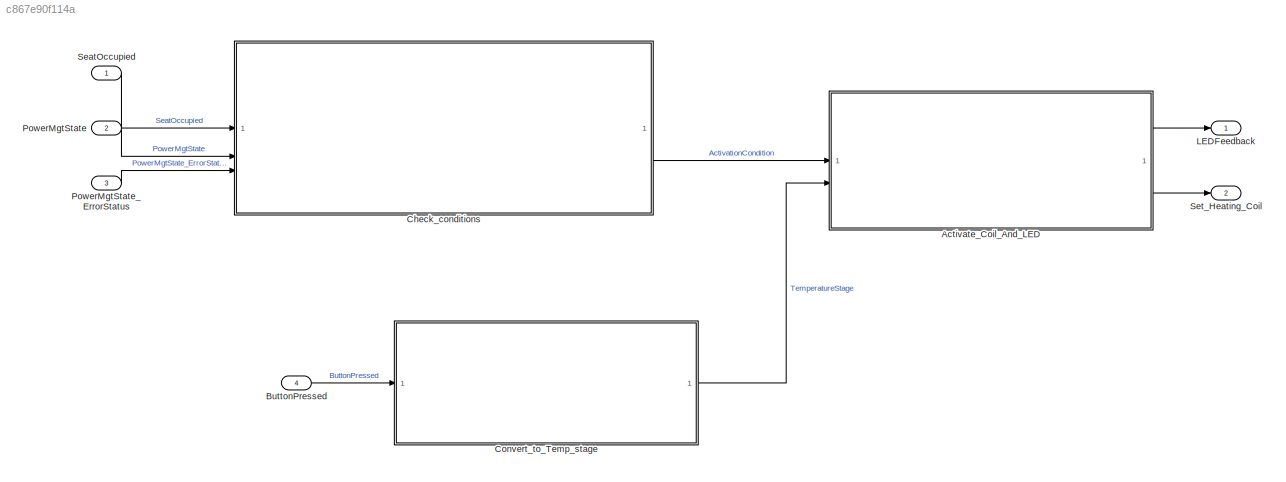
MODEL slx_c867e90f114a
KIND model
CONFIG AbsTol = auto
CONFIG EnableMultiTasking = off
CONFIG FixedStep = 0.01
CONFIG MaxStep = auto
CONFIG MinStep = auto
CONFIG RelTol = 1e-3
CONFIG SampleTimeConstraint = Unconstrained
CONFIG SolverName = FixedStepDiscrete
CONFIG StartTime = 0.0
CONFIG StopTime = 10.0
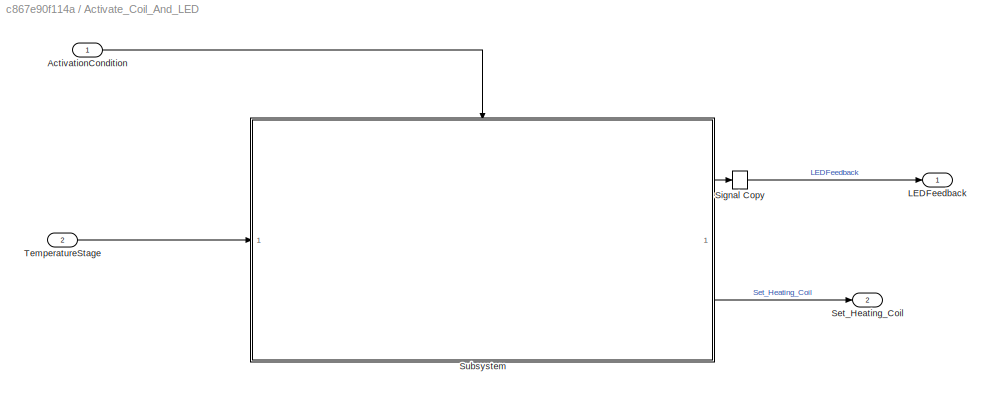
BLOCK [SubSystem] Activate_Coil_And_LED
BLOCK [Inport] Activate_Coil_And_LED/ActivationCondition
BLOCK [Outport] Activate_Coil_And_LED/LEDFeedback
  EnsureOutportIsVirtual = on
BLOCK [Outport] Activate_Coil_And_LED/Set_Heating_Coil
  Port = 2
BLOCK [SignalConversion] Activate_Coil_And_LED/Signal Copy
  OverrideOpt = off
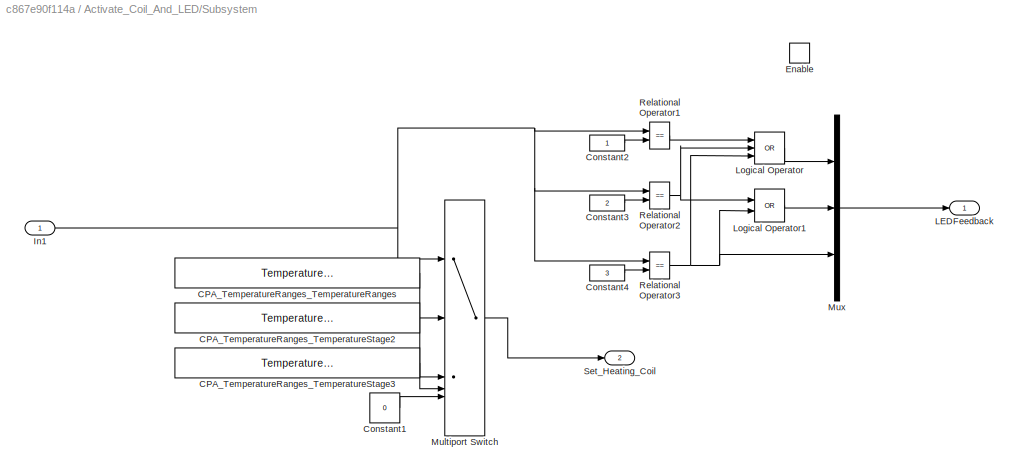
BLOCK [SubSystem] Activate_Coil_And_LED/Subsystem
BLOCK [Constant] Activate_Coil_And_LED/Subsystem/CPA_TemperatureRanges_TemperatureRanges
  Value = TemperatureStage1
BLOCK [Constant] Activate_Coil_And_LED/Subsystem/CPA_TemperatureRanges_TemperatureStage2
  Value = TemperatureStage2
BLOCK [Constant] Activate_Coil_And_LED/Subsystem/CPA_TemperatureRanges_TemperatureStage3
  Value = TemperatureStage3
BLOCK [Constant] Activate_Coil_And_LED/Subsystem/Constant1
  Value = 0
BLOCK [Constant] Activate_Coil_And_LED/Subsystem/Constant2
  OutDataTypeStr = Inherit: Inherit via back propagation
BLOCK [Constant] Activate_Coil_And_LED/Subsystem/Constant3
  OutDataTypeStr = Inherit: Inherit via back propagation
  Value = 2
BLOCK [Constant] Activate_Coil_And_LED/Subsystem/Constant4
  OutDataTypeStr = Inherit: Inherit via back propagation
  Value = 3
BLOCK [EnablePort] Activate_Coil_And_LED/Subsystem/Enable
BLOCK [Inport] Activate_Coil_And_LED/Subsystem/In1
BLOCK [Outport] Activate_Coil_And_LED/Subsystem/LEDFeedback
BLOCK [Logic] Activate_Coil_And_LED/Subsystem/Logical Operator
  AllPortsSameDT = off
  Inputs = 3
  Operator = OR
  OutDataTypeStr = boolean
BLOCK [Logic] Activate_Coil_And_LED/Subsystem/Logical Operator1
  AllPortsSameDT = off
  Operator = OR
  OutDataTypeStr = boolean
BLOCK [MultiPortSwitch] Activate_Coil_And_LED/Subsystem/Multiport Switch
  DataPortForDefault = Additional data port
  DataPortIndices = {0,1,2,3}
  DiagnosticForDefault = None
  InputSameDT = off
  OutDataTypeStr = uint8
  SaturateOnIntegerOverflow = off
BLOCK [Mux] Activate_Coil_And_LED/Subsystem/Mux
  DisplayOption = bar
  Inputs = 3
BLOCK [RelationalOperator] Activate_Coil_And_LED/Subsystem/Relational Operator1
  InputSameDT = off
  Operator = ==
  OutDataTypeStr = boolean
  RndMeth = Simplest
BLOCK [RelationalOperator] Activate_Coil_And_LED/Subsystem/Relational Operator2
  InputSameDT = off
  Operator = ==
  OutDataTypeStr = boolean
  RndMeth = Simplest
BLOCK [RelationalOperator] Activate_Coil_And_LED/Subsystem/Relational Operator3
  InputSameDT = off
  Operator = ==
  OutDataTypeStr = boolean
  RndMeth = Simplest
BLOCK [Outport] Activate_Coil_And_LED/Subsystem/Set_Heating_Coil
  Port = 2
BLOCK [Inport] Activate_Coil_And_LED/TemperatureStage
  Port = 2
BLOCK [Inport] ButtonPressed
  Port = 4
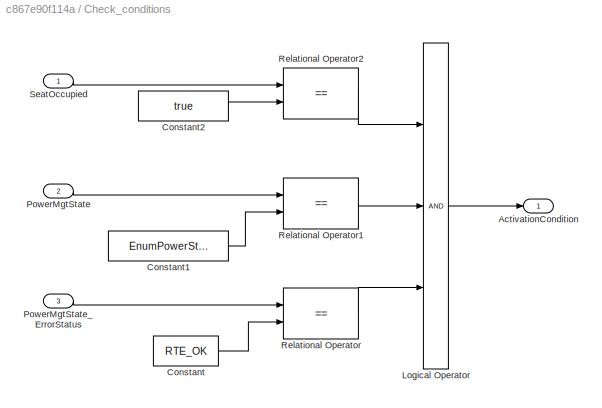
BLOCK [SubSystem] Check_conditions
BLOCK [Outport] Check_conditions/ActivationCondition
  InitialOutput = 0
  OutDataTypeStr = boolean
  PortDimensions = 1
  SamplingMode = Sample based
  SignalType = real
BLOCK [Constant] Check_conditions/Constant
  Value = RTE_OK
BLOCK [Constant] Check_conditions/Constant1
  Value = EnumPowerState.OK
BLOCK [Constant] Check_conditions/Constant2
  Value = true
BLOCK [Logic] Check_conditions/Logical Operator
  AllPortsSameDT = off
  Inputs = 3
  OutDataTypeStr = boolean
BLOCK [Inport] Check_conditions/PowerMgtState
  Port = 2
BLOCK [Inport] Check_conditions/PowerMgtState_ErrorStatus
  Port = 3
BLOCK [RelationalOperator] Check_conditions/Relational Operator
  InputSameDT = off
  Operator = ==
  OutDataTypeStr = boolean
  RndMeth = Simplest
BLOCK [RelationalOperator] Check_conditions/Relational Operator1
  InputSameDT = off
  Operator = ==
  OutDataTypeStr = boolean
  RndMeth = Simplest
BLOCK [RelationalOperator] Check_conditions/Relational Operator2
  InputSameDT = off
  Operator = ==
  OutDataTypeStr = boolean
  RndMeth = Simplest
BLOCK [Inport] Check_conditions/SeatOccupied
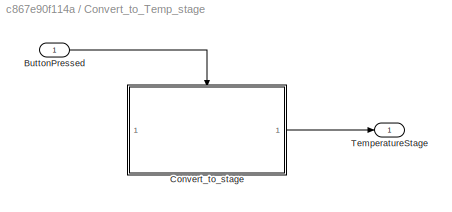
BLOCK [SubSystem] Convert_to_Temp_stage
BLOCK [Inport] Convert_to_Temp_stage/ButtonPressed
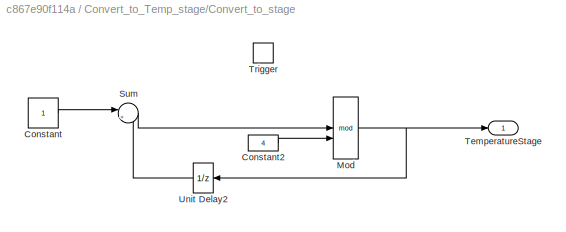
BLOCK [SubSystem] Convert_to_Temp_stage/Convert_to_stage
BLOCK [Constant] Convert_to_Temp_stage/Convert_to_stage/Constant
  OutDataTypeStr = Inherit: Inherit via back propagation
BLOCK [Constant] Convert_to_Temp_stage/Convert_to_stage/Constant2
  NameLocation = top
  OutDataTypeStr = Inherit: Inherit via back propagation
  Value = 4
BLOCK [Math] Convert_to_Temp_stage/Convert_to_stage/Mod
  Operator = mod
BLOCK [Sum] Convert_to_Temp_stage/Convert_to_stage/Sum
  Inputs = |++
BLOCK [Outport] Convert_to_Temp_stage/Convert_to_stage/TemperatureStage
  InitialOutput = 0
BLOCK [TriggerPort] Convert_to_Temp_stage/Convert_to_stage/Trigger
  PortDimensions = 1
  StatesWhenEnabling = held
  VariantControl = Variant
BLOCK [UnitDelay] Convert_to_Temp_stage/Convert_to_stage/Unit Delay2
  AttributesFormatString = Init = %<InitialCondition>
  HasFrameUpgradeWarning = on
  SampleTime = -1
BLOCK [Outport] Convert_to_Temp_stage/TemperatureStage
  InitialOutput = 0
  OutDataTypeStr = uint8
  PortDimensions = 1
  SamplingMode = Sample based
  SignalType = real
BLOCK [Outport] LEDFeedback
  OutDataTypeStr = boolean
  SamplingMode = Sample based
  SignalType = real
BLOCK [Inport] PowerMgtState
  OutDataTypeStr = Enum: EnumPowerState
  Port = 2
  PortDimensions = 1
  SamplingMode = Sample based
  SignalType = real
BLOCK [Inport] PowerMgtState_ErrorStatus
  OutDataTypeStr = uint8
  Port = 3
  PortDimensions = 1
  SamplingMode = Sample based
  SignalType = real
BLOCK [Inport] SeatOccupied
  OutDataTypeStr = boolean
  PortDimensions = 1
  SamplingMode = Sample based
  SignalType = real
BLOCK [Outport] Set_Heating_Coil
  Port = 2
LINE Activate_Coil_And_LED/ActivationCondition:1 -> Activate_Coil_And_LED/Subsystem:enable
LINE Activate_Coil_And_LED/Signal Copy:1 -> Activate_Coil_And_LED/LEDFeedback:1
LINE Activate_Coil_And_LED/Subsystem/CPA_TemperatureRanges_TemperatureRanges:1 -> Activate_Coil_And_LED/Subsystem/Multiport Switch:2
LINE Activate_Coil_And_LED/Subsystem/CPA_TemperatureRanges_TemperatureStage2:1 -> Activate_Coil_And_LED/Subsystem/Multiport Switch:3
LINE Activate_Coil_And_LED/Subsystem/CPA_TemperatureRanges_TemperatureStage3:1 -> Activate_Coil_And_LED/Subsystem/Multiport Switch:4
LINE Activate_Coil_And_LED/Subsystem/Constant1:1 -> Activate_Coil_And_LED/Subsystem/Multiport Switch:5
LINE Activate_Coil_And_LED/Subsystem/Constant2:1 -> Activate_Coil_And_LED/Subsystem/Relational Operator1:2
LINE Activate_Coil_And_LED/Subsystem/Constant3:1 -> Activate_Coil_And_LED/Subsystem/Relational Operator2:2
LINE Activate_Coil_And_LED/Subsystem/Constant4:1 -> Activate_Coil_And_LED/Subsystem/Relational Operator3:2
NET Activate_Coil_And_LED/Subsystem/In1:1 -> Activate_Coil_And_LED/Subsystem/Multiport Switch:1, Activate_Coil_And_LED/Subsystem/Relational Operator1:1, Activate_Coil_And_LED/Subsystem/Relational Operator2:1, Activate_Coil_And_LED/Subsystem/Relational Operator3:1
LINE Activate_Coil_And_LED/Subsystem/Logical Operator1:1 -> Activate_Coil_And_LED/Subsystem/Mux:2
LINE Activate_Coil_And_LED/Subsystem/Logical Operator:1 -> Activate_Coil_And_LED/Subsystem/Mux:1
LINE Activate_Coil_And_LED/Subsystem/Multiport Switch:1 -> Activate_Coil_And_LED/Subsystem/Set_Heating_Coil:1
LINE Activate_Coil_And_LED/Subsystem/Mux:1 -> Activate_Coil_And_LED/Subsystem/LEDFeedback:1
LINE Activate_Coil_And_LED/Subsystem/Relational Operator1:1 -> Activate_Coil_And_LED/Subsystem/Logical Operator:1
NET Activate_Coil_And_LED/Subsystem/Relational Operator2:1 -> Activate_Coil_And_LED/Subsystem/Logical Operator1:1, Activate_Coil_And_LED/Subsystem/Logical Operator:2
NET Activate_Coil_And_LED/Subsystem/Relational Operator3:1 -> Activate_Coil_And_LED/Subsystem/Logical Operator1:2, Activate_Coil_And_LED/Subsystem/Logical Operator:3, Activate_Coil_And_LED/Subsystem/Mux:3
LINE Activate_Coil_And_LED/Subsystem:1 -> Activate_Coil_And_LED/Signal Copy:1
LINE Activate_Coil_And_LED/Subsystem:2 -> Activate_Coil_And_LED/Set_Heating_Coil:1
LINE Activate_Coil_And_LED/TemperatureStage:1 -> Activate_Coil_And_LED/Subsystem:1
LINE Activate_Coil_And_LED:1 -> LEDFeedback:1
LINE Activate_Coil_And_LED:2 -> Set_Heating_Coil:1
LINE ButtonPressed:1 -> Convert_to_Temp_stage:1
LINE Check_conditions/Constant1:1 -> Check_conditions/Relational Operator1:2
LINE Check_conditions/Constant2:1 -> Check_conditions/Relational Operator2:2
LINE Check_conditions/Constant:1 -> Check_conditions/Relational Operator:2
LINE Check_conditions/Logical Operator:1 -> Check_conditions/ActivationCondition:1
LINE Check_conditions/PowerMgtState:1 -> Check_conditions/Relational Operator1:1
LINE Check_conditions/PowerMgtState_ErrorStatus:1 -> Check_conditions/Relational Operator:1
LINE Check_conditions/Relational Operator1:1 -> Check_conditions/Logical Operator:2
LINE Check_conditions/Relational Operator2:1 -> Check_conditions/Logical Operator:1
LINE Check_conditions/Relational Operator:1 -> Check_conditions/Logical Operator:3
LINE Check_conditions/SeatOccupied:1 -> Check_conditions/Relational Operator2:1
LINE Check_conditions:1 -> Activate_Coil_And_LED:1
LINE Convert_to_Temp_stage/ButtonPressed:1 -> Convert_to_Temp_stage/Convert_to_stage:trigger
LINE Convert_to_Temp_stage/Convert_to_stage/Constant2:1 -> Convert_to_Temp_stage/Convert_to_stage/Mod:2
LINE Convert_to_Temp_stage/Convert_to_stage/Constant:1 -> Convert_to_Temp_stage/Convert_to_stage/Sum:1
NET Convert_to_Temp_stage/Convert_to_stage/Mod:1 -> Convert_to_Temp_stage/Convert_to_stage/TemperatureStage:1, Convert_to_Temp_stage/Convert_to_stage/Unit Delay2:1
LINE Convert_to_Temp_stage/Convert_to_stage/Sum:1 -> Convert_to_Temp_stage/Convert_to_stage/Mod:1
LINE Convert_to_Temp_stage/Convert_to_stage/Unit Delay2:1 -> Convert_to_Temp_stage/Convert_to_stage/Sum:2
LINE Convert_to_Temp_stage/Convert_to_stage:1 -> Convert_to_Temp_stage/TemperatureStage:1
LINE Convert_to_Temp_stage:1 -> Activate_Coil_And_LED:2
LINE PowerMgtState:1 -> Check_conditions:2
LINE PowerMgtState_ErrorStatus:1 -> Check_conditions:3
LINE SeatOccupied:1 -> Check_conditions:1
note: NET lines group one-source signal fan-out (src -> all destinations, sorted); 1:1 wires keep LINE
